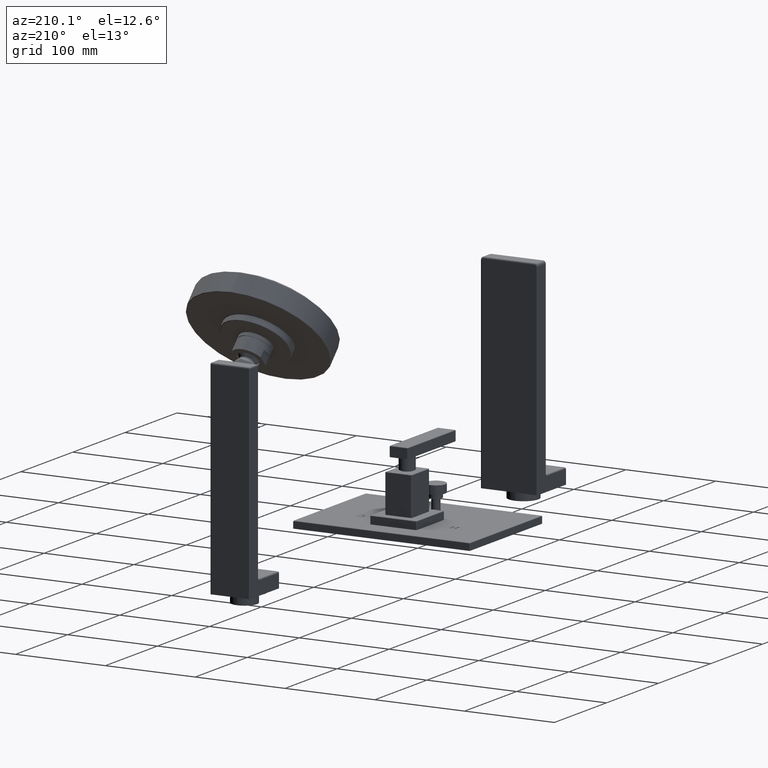
[diagram: clean part render]
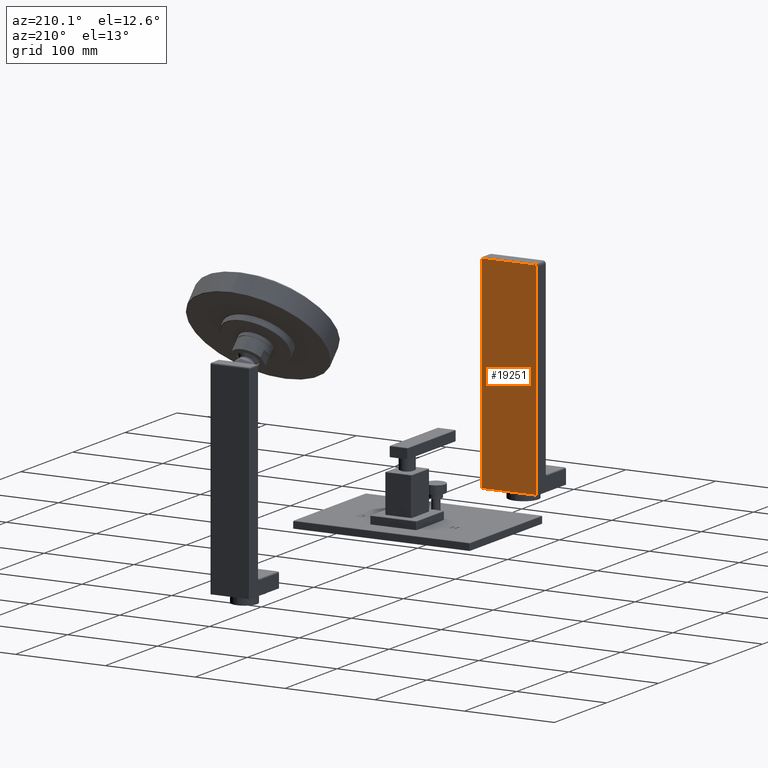
[diagram: same view with one face highlighted and labeled with its STEP entity id]
A machine part, auxiliary view. The second image highlights one B-rep face of the part: STEP entity #19251.
In plain terms, the highlighted planar face has unit normal (0, 1, 0).
Its self-contained STEP definition (entity closure, byte-faithful):
#16363=DIRECTION('',(0.E0,0.E0,-1.E0));
#16364=VECTOR('',#16363,8.882E0);
#16365=CARTESIAN_POINT('',(-1.19E0,-6.9E0,8.882E0));
#16366=LINE('',#16365,#16364);
#16370=DIRECTION('',(1.E0,0.E0,0.E0));
#16371=VECTOR('',#16370,2.38E0);
#16372=CARTESIAN_POINT('',(-1.19E0,-6.9E0,0.E0));
#16373=LINE('',#16372,#16371);
#16377=DIRECTION('',(0.E0,0.E0,1.E0));
#16378=VECTOR('',#16377,8.882E0);
#16379=CARTESIAN_POINT('',(1.19E0,-6.9E0,0.E0));
#16380=LINE('',#16379,#16378);
#16384=CARTESIAN_POINT('',(1.132E0,-6.9E0,8.882E0));
#16385=DIRECTION('',(0.E0,-1.E0,0.E0));
#16386=DIRECTION('',(1.E0,0.E0,0.E0));
#16387=AXIS2_PLACEMENT_3D('',#16384,#16385,#16386);
#16392=DIRECTION('',(-1.E0,0.E0,0.E0));
#16393=VECTOR('',#16392,2.264E0);
#16394=CARTESIAN_POINT('',(1.132E0,-6.9E0,8.94E0));
#16395=LINE('',#16394,#16393);
#16399=CARTESIAN_POINT('',(-1.132E0,-6.9E0,8.882E0));
#16400=DIRECTION('',(0.E0,-1.E0,0.E0));
#16401=DIRECTION('',(0.E0,0.E0,1.E0));
#16402=AXIS2_PLACEMENT_3D('',#16399,#16400,#16401);
#17904=CARTESIAN_POINT('',(-1.19E0,-6.9E0,8.882E0));
#17905=CARTESIAN_POINT('',(-1.19E0,-6.9E0,0.E0));
#17906=VERTEX_POINT('',#17904);
#17907=VERTEX_POINT('',#17905);
#17914=CARTESIAN_POINT('',(-1.132E0,-6.9E0,8.94E0));
#17915=VERTEX_POINT('',#17914);
#17918=CARTESIAN_POINT('',(1.132E0,-6.9E0,8.94E0));
#17919=VERTEX_POINT('',#17918);
#17922=CARTESIAN_POINT('',(1.19E0,-6.9E0,8.882E0));
#17923=VERTEX_POINT('',#17922);
#17926=CARTESIAN_POINT('',(1.19E0,-6.9E0,0.E0));
#17927=VERTEX_POINT('',#17926);
#19234=CARTESIAN_POINT('',(-1.25E0,-6.9E0,0.E0));
#19235=DIRECTION('',(0.E0,1.E0,0.E0));
#19236=DIRECTION('',(0.E0,0.E0,1.E0));
#19237=AXIS2_PLACEMENT_3D('',#19234,#19235,#19236);
#19238=PLANE('',#19237);
#19239=ORIENTED_EDGE('',*,*,#19218,.T.);
#19241=ORIENTED_EDGE('',*,*,#19240,.T.);
#19243=ORIENTED_EDGE('',*,*,#19242,.T.);
#19245=ORIENTED_EDGE('',*,*,#19244,.T.);
#19247=ORIENTED_EDGE('',*,*,#19246,.T.);
#19248=ORIENTED_EDGE('',*,*,#19199,.T.);
#19249=EDGE_LOOP('',(#19239,#19241,#19243,#19245,#19247,#19248));
#19250=FACE_OUTER_BOUND('',#19249,.F.);
#16388=CIRCLE('',#16387,5.8E-2);
#16403=CIRCLE('',#16402,5.8E-2);
#19199=EDGE_CURVE('',#17915,#17906,#16403,.T.);
#19218=EDGE_CURVE('',#17906,#17907,#16366,.T.);
#19240=EDGE_CURVE('',#17907,#17927,#16373,.T.);
#19242=EDGE_CURVE('',#17927,#17923,#16380,.T.);
#19244=EDGE_CURVE('',#17923,#17919,#16388,.T.);
#19246=EDGE_CURVE('',#17919,#17915,#16395,.T.);
#19251=ADVANCED_FACE('',(#19250),#19238,.T.);